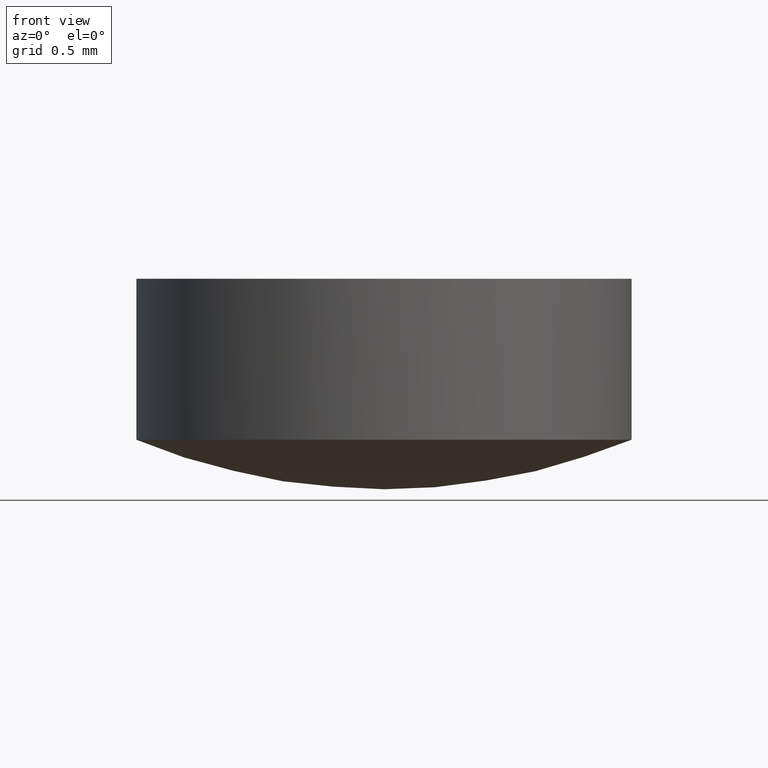
[diagram: clean part render]
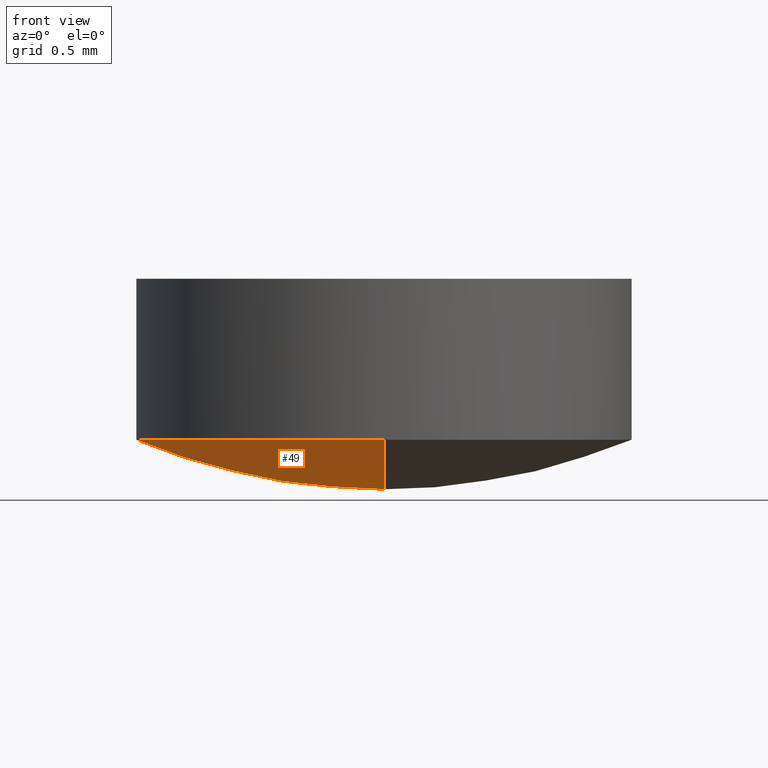
[diagram: same view with one face highlighted and labeled with its STEP entity id]
A machine part, front view. The second image highlights one B-rep face of the part: STEP entity #49.
In plain terms, the highlighted spherical surface has radius 5.1998 mm.
Its self-contained STEP definition (entity closure, byte-faithful):
#2 = EDGE_CURVE ( 'NONE', #110, #31, #141, .T. ) ;
#20 = DIRECTION ( 'NONE',  ( 0.0000000000000000000, -1.000000000000000000, 0.0000000000000000000 ) ) ;
#21 = AXIS2_PLACEMENT_3D ( 'NONE', #66, #63, #164 ) ;
#31 = VERTEX_POINT ( 'NONE', #84 ) ;
#36 = AXIS2_PLACEMENT_3D ( 'NONE', #41, #132, #20 ) ;
#41 = CARTESIAN_POINT ( 'NONE',  ( 0.0000000000000000000, 51.57843641650233500, -393.8734569271085800 ) ) ;
#42 = SPHERICAL_SURFACE ( 'NONE', #36, 5.199817166830664300 ) ;
#43 = DIRECTION ( 'NONE',  ( 0.0000000000000000000, 0.0000000000000000000, 1.000000000000000000 ) ) ;
#45 = DIRECTION ( 'NONE',  ( 1.000000000000000000, 0.0000000000000000000, 0.0000000000000000000 ) ) ;
#49 = ADVANCED_FACE ( 'NONE', ( #51 ), #42, .T. ) ;
#50 = CIRCLE ( 'NONE', #126, 5.199817166830662500 ) ;
#51 = FACE_OUTER_BOUND ( 'NONE', #117, .T. ) ;
#56 = CARTESIAN_POINT ( 'NONE',  ( 2.449293598294660600E-016, 53.57843641650229900, -398.6732588572372700 ) ) ;
#57 = AXIS2_PLACEMENT_3D ( 'NONE', #72, #133, #43 ) ;
#63 = DIRECTION ( 'NONE',  ( -0.0000000000000000000, -0.0000000000000000000, 1.000000000000000000 ) ) ;
#66 = CARTESIAN_POINT ( 'NONE',  ( 0.0000000000000000000, 51.57843641650232100, -398.6732588572372700 ) ) ;
#67 = VERTEX_POINT ( 'NONE', #101 ) ;
#70 = CARTESIAN_POINT ( 'NONE',  ( 0.0000000000000000000, 51.57843641650233500, -393.8734569271085800 ) ) ;
#72 = CARTESIAN_POINT ( 'NONE',  ( 0.0000000000000000000, 51.57843641650233500, -393.8734569271085800 ) ) ;
#78 = AXIS2_PLACEMENT_3D ( 'NONE', #159, #183, #45 ) ;
#84 = CARTESIAN_POINT ( 'NONE',  ( -1.999999999999994900, 51.57843641650232100, -398.6732588572372700 ) ) ;
#90 = CIRCLE ( 'NONE', #57, 5.199817166830655400 ) ;
#101 = CARTESIAN_POINT ( 'NONE',  ( 0.0000000000000000000, 51.57843641650233500, -399.0732740939392300 ) ) ;
#105 = ORIENTED_EDGE ( 'NONE', *, *, #109, .T. ) ;
#109 = EDGE_CURVE ( 'NONE', #67, #129, #90, .T. ) ;
#110 = VERTEX_POINT ( 'NONE', #56 ) ;
#115 = DIRECTION ( 'NONE',  ( 1.224646799147353700E-016, 1.000000000000000000, 0.0000000000000000000 ) ) ;
#117 = EDGE_LOOP ( 'NONE', ( #124, #105, #146, #179 ) ) ;
#124 = ORIENTED_EDGE ( 'NONE', *, *, #163, .F. ) ;
#126 = AXIS2_PLACEMENT_3D ( 'NONE', #70, #131, #115 ) ;
#129 = VERTEX_POINT ( 'NONE', #142 ) ;
#131 = DIRECTION ( 'NONE',  ( 1.000000000000000000, -1.224646799147353200E-016, 0.0000000000000000000 ) ) ;
#132 = DIRECTION ( 'NONE',  ( 1.000000000000000000, 0.0000000000000000000, 0.0000000000000000000 ) ) ;
#133 = DIRECTION ( 'NONE',  ( -1.000000000000000000, -0.0000000000000000000, -0.0000000000000000000 ) ) ;
#141 = CIRCLE ( 'NONE', #21, 1.999999999999994900 ) ;
#142 = CARTESIAN_POINT ( 'NONE',  ( 0.0000000000000000000, 49.57843641650235600, -398.6732588572372700 ) ) ;
#146 = ORIENTED_EDGE ( 'NONE', *, *, #185, .F. ) ;
#159 = CARTESIAN_POINT ( 'NONE',  ( 0.0000000000000000000, 51.57843641650232100, -398.6732588572372700 ) ) ;
#163 = EDGE_CURVE ( 'NONE', #67, #110, #50, .T. ) ;
#164 = DIRECTION ( 'NONE',  ( 1.000000000000000000, 0.0000000000000000000, 0.0000000000000000000 ) ) ;
#171 = CIRCLE ( 'NONE', #78, 1.999999999999994900 ) ;
#179 = ORIENTED_EDGE ( 'NONE', *, *, #2, .F. ) ;
#183 = DIRECTION ( 'NONE',  ( -0.0000000000000000000, -0.0000000000000000000, 1.000000000000000000 ) ) ;
#185 = EDGE_CURVE ( 'NONE', #31, #129, #171, .T. ) ;